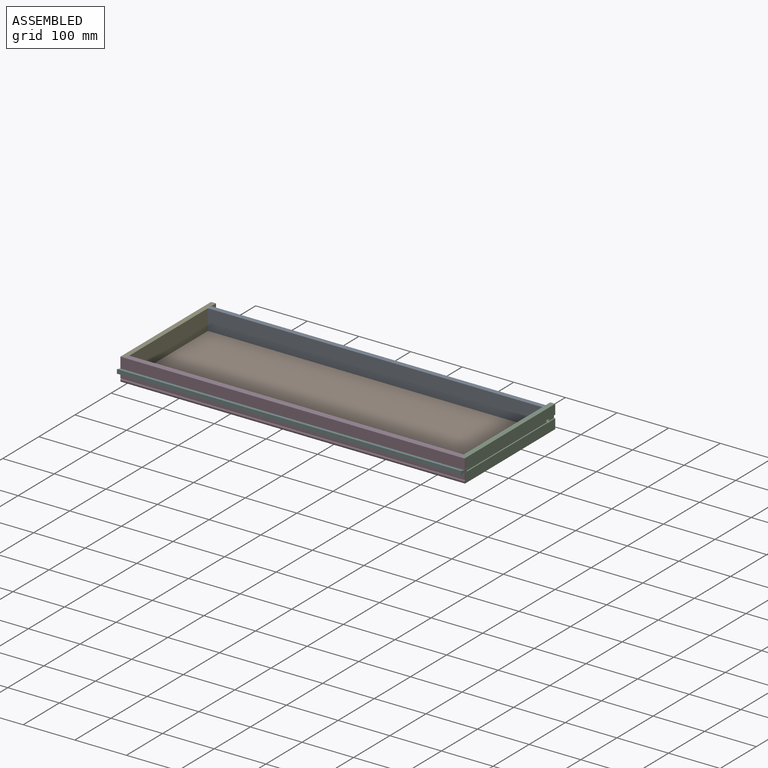
[diagram: assembled view]
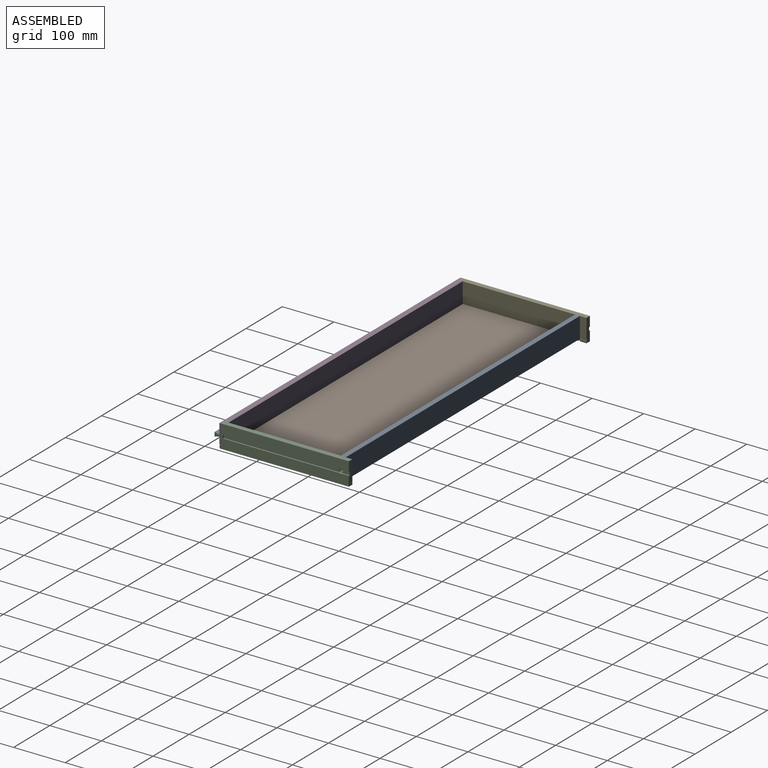
[diagram: assembled view, second angle]
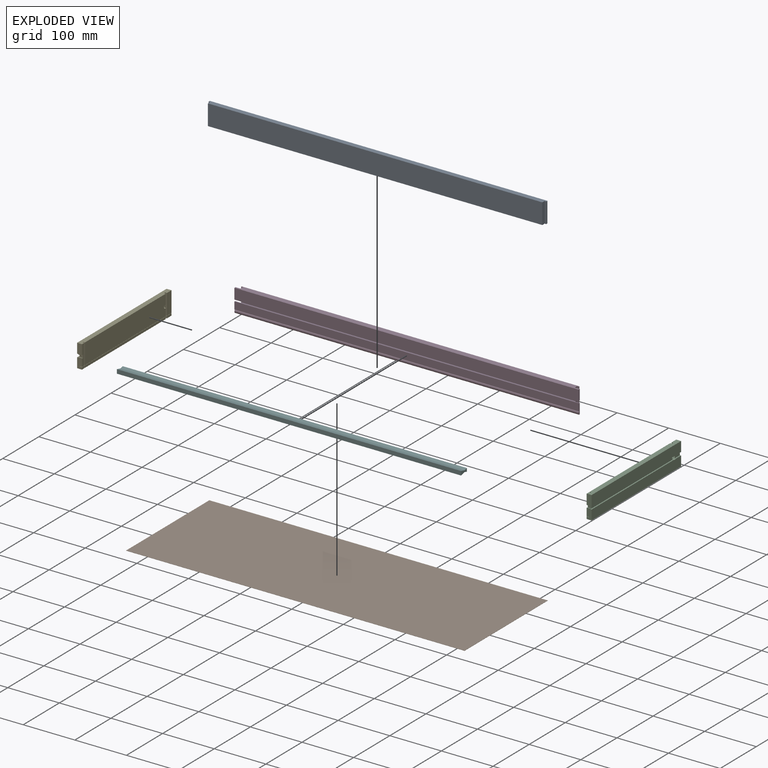
[diagram: exploded view]
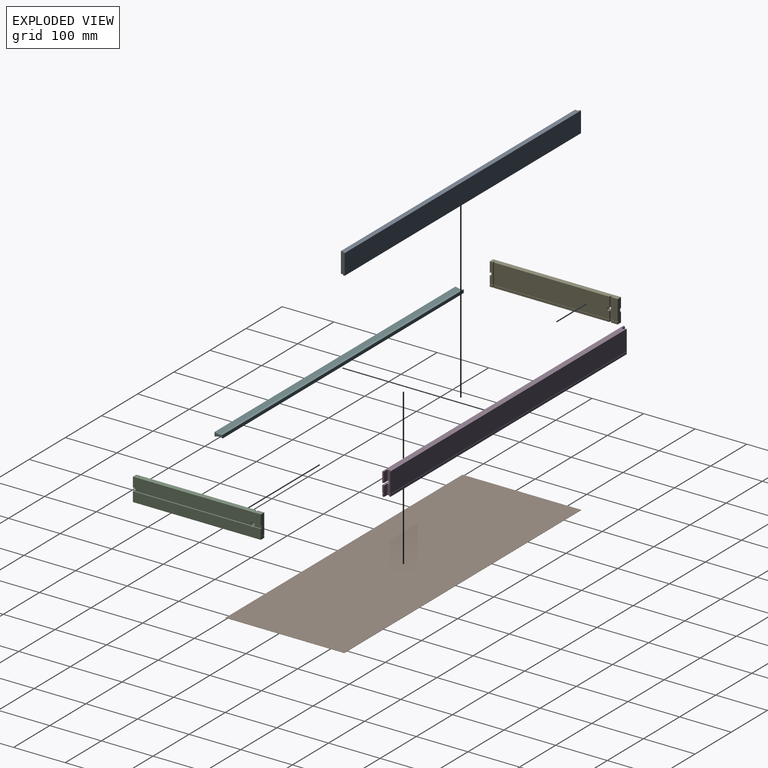
[diagram: exploded view, second angle]
ASSEMBLY  parts=6 mates=5
PART A: 10 faces, bbox 654.1x9.5x39.7 mm
  f0: plane 39.69x6.35mm, normal (1,0,0), area 252mm2, adj f1,f3,f5,f6
  f1: plane 654.05x9.53mm, normal (0,0,1), area 6189.5mm2, adj f0,f2,f4,f5,f6,f7,f8,f9
  f2: plane 39.69x6.35mm, normal (-1,0,0), area 252mm2, adj f1,f3,f5,f9
  f3: plane 654.05x9.53mm, normal (0,0,-1), area 6189.5mm2, adj f0,f2,f4,f5,f6,f7,f8,f9
  f4: plane 654.05x39.69mm, normal (0,1,0), area 25957.6mm2, adj f1,f3,f7,f8
  f5: plane 647.7x39.69mm, normal (0,-1,0), area 25705.6mm2, adj f0,f1,f2,f3
  f6: plane 39.69x3.18mm, normal (0,-1,0), area 126mm2, adj f0,f1,f3,f7
  f7: plane 39.69x3.18mm, normal (1,0,0), area 126mm2, adj f1,f3,f4,f6
  f8: plane 39.69x3.18mm, normal (-1,0,0), area 126mm2, adj f1,f3,f4,f9
  f9: plane 39.69x3.18mm, normal (0,-1,0), area 126mm2, adj f1,f2,f3,f8
PART B: 6 faces, bbox 655.7x230.2x0.4 mm
  f0: plane 230.2x0.4mm, normal (1,0,0), area 91.4mm2, adj f1,f3,f4,f5
  f1: plane 655.65x0.4mm, normal (0,1,0), area 260.2mm2, adj f0,f2,f4,f5
  f2: plane 230.2x0.4mm, normal (-1,0,0), area 91.4mm2, adj f1,f3,f4,f5
  f3: plane 655.65x0.4mm, normal (0,-1,0), area 260.2mm2, adj f0,f2,f4,f5
  f4: plane 655.65x230.2mm, normal (0,0,-1), area 150930.8mm2, adj f0,f1,f2,f3
  f5: plane 655.65x230.2mm, normal (0,0,1), area 150930.8mm2, adj f0,f1,f2,f3
PART C: 43 faces, bbox 9.5x247.7x44.5 mm
  f0: plane 19.84x9.53mm, normal (0,-1,0), area 185.2mm2, adj f3,f6,f15,f16,f17,f32,f33,f34
  f1: plane 247.65x19.05mm, normal (1,0,0), area 4715.2mm2, adj f2,f18,f20,f24,f37,f41
  f2: plane 19.84x9.53mm, normal (0,-1,0), area 187.1mm2, adj f1,f4,f15,f18,f36,f37
  f3: plane 7.14x3.18mm, normal (0,0.24,0.97), area 23.4mm2, adj f0,f5,f15,f38
  f4: plane 7.14x3.18mm, normal (0,0.24,-0.97), area 23.4mm2, adj f2,f5,f15,f36
  f5: plane 7.14x6.35mm, normal (0,-1,0), area 45.4mm2, adj f3,f4,f15,f35
  f6: plane 6.35x4.36mm, normal (-1,0,0), area 27.7mm2, adj f0,f17,f29,f32
  f7: plane 223.84x4.36mm, normal (-1,0,0), area 975.1mm2, adj f17,f25,f31,f32
  f8: plane 12.7x4.36mm, normal (-1,0,0), area 55.3mm2, adj f17,f20,f26,f32
  f9: plane 14.71x3.18mm, normal (0,1,0), area 46.7mm2, adj f11,f19,f22,f33
  f10: plane 39.69x3.18mm, normal (0,-1,0), area 126mm2, adj f11,f18,f21,f33
  f11: plane 39.69x3.18mm, normal (-1,0,0), area 119.8mm2, adj f9,f10,f18,f22,f27,f33
  f12: plane 39.69x3.18mm, normal (0,1,0), area 126mm2, adj f13,f15,f18,f33
  f13: plane 39.69x1.59mm, normal (-1,0,0), area 63mm2, adj f12,f14,f18,f33
  f14: plane 39.69x3.18mm, normal (0,-1,0), area 126mm2, adj f13,f18,f19,f33
  f15: plane 39.69x6.35mm, normal (-1,0,0), area 234.4mm2, adj f0,f2,f3,f4,f5,f12,f18,f33
  f16: plane 247.65x19.05mm, normal (1,0,0), area 4715.2mm2, adj f0,f17,f20,f24,f39,f42
  f17: plane 247.65x9.53mm, normal (0,0,-1), area 2343.7mm2, adj f0,f6,f7,f8,f16,f20,f25,f26
  f18: plane 247.65x9.53mm, normal (0,0,1), area 2343.7mm2, adj f1,f2,f10,f11,f12,f13,f14,f15
  f19: plane 223.84x39.69mm, normal (-1,0,0), area 8858.1mm2, adj f9,f14,f18,f22,f27,f33
  f20: plane 44.45x9.53mm, normal (0,1,0), area 406.3mm2, adj f1,f8,f16,f17,f18,f21,f32,f33
  f21: plane 39.69x12.7mm, normal (-1,0,0), area 504mm2, adj f10,f18,f20,f33
  f22: cylinder r=3.17mm len=6.35mm, axis (1,0,0), area 73.9mm2, adj f9,f11,f19,f23,f27
  f23: plane 7.94x7.94mm, normal (1,0,0), area 17.8mm2, adj f22,f24
  f24: cylinder r=3.97mm len=7.94mm, axis (1,0,0), area 83.7mm2, adj f1,f16,f23,f35,f37,f39,f40,f41
  f25: plane 4.36x3.18mm, normal (0,1,0), area 13.8mm2, adj f7,f17,f28,f32
  f26: plane 4.36x3.18mm, normal (0,-1,0), area 13.8mm2, adj f8,f17,f28,f32
  f27: plane 19.48x3.18mm, normal (0,1,0), area 61.8mm2, adj f11,f18,f19,f22
  f28: plane 4.36x3.18mm, normal (-1,0,0), area 13.8mm2, adj f17,f25,f26,f32
  f29: plane 4.36x3.18mm, normal (0,1,0), area 13.8mm2, adj f6,f17,f30,f32
  f30: plane 4.36x1.59mm, normal (-1,0,0), area 6.9mm2, adj f17,f29,f31,f32
  f31: plane 4.36x3.18mm, normal (0,-1,0), area 13.8mm2, adj f7,f17,f30,f32
  f32: plane 247.65x4.76mm, normal (0,0,1), area 1164.3mm2, adj f0,f6,f7,f8,f20,f25,f26,f28
  f33: plane 247.65x4.76mm, normal (0,0,-1), area 1164.3mm2, adj f0,f9,f10,f11,f12,f13,f14,f15
  f34: plane 247.65x0.41mm, normal (-1,0,0), area 100.6mm2, adj f0,f20,f32,f33
  f35: plane 224.63x6.35mm, normal (1,0,0), area 1419.4mm2, adj f5,f24,f37,f39
  f36: plane 3.18x0.79mm, normal (1,0,0), area 1.3mm2, adj f2,f4,f37
  f37: plane 227.81x2.38mm, normal (0,0,-1), area 542.5mm2, adj f1,f2,f24,f35,f36
  f38: plane 3.18x0.79mm, normal (1,0,0), area 1.3mm2, adj f0,f3,f39
  f39: plane 227.81x2.38mm, normal (0,0,1), area 542.5mm2, adj f0,f16,f24,f35,f38
  f40: plane 15.08x6.35mm, normal (1,0,0), area 88.7mm2, adj f20,f24,f41,f42
  f41: plane 15.08x2.38mm, normal (0,0,-1), area 35.9mm2, adj f1,f20,f24,f40
  f42: plane 15.08x2.38mm, normal (0,0,1), area 35.9mm2, adj f16,f20,f24,f40
PART D: 32 faces, bbox 666.8x11.1x44.5 mm
  f0: plane 20.63x3.18mm, normal (-1,0,0), area 60.8mm2, adj f1,f6,f15,f23,f30,f31
  f1: plane 666.75x9.53mm, normal (0,0,-1), area 6209.7mm2, adj f0,f3,f4,f16,f18,f20,f22,f23
  f2: plane 654.05x39.69mm, normal (0,1,0), area 25957.6mm2, adj f5,f10,f19,f28
  f3: plane 654.05x4.36mm, normal (0,1,0), area 2849.1mm2, adj f1,f9,f18,f27
  f4: plane 20.63x3.18mm, normal (1,0,0), area 60.8mm2, adj f1,f6,f15,f16,f30,f31
  f5: plane 666.75x11.11mm, normal (0,0,1), area 7268.1mm2, adj f2,f12,f13,f14,f17,f19,f21,f22
  f6: plane 666.75x6.35mm, normal (0,0.24,0.97), area 4301.1mm2, adj f0,f4,f7,f15,f16,f22,f23,f29
  f7: plane 647.7x6.35mm, normal (0,-1,0), area 4112.9mm2, adj f6,f8,f22,f29
  f8: plane 666.75x6.35mm, normal (0,0.24,-0.97), area 4301.1mm2, adj f7,f12,f13,f14,f17,f22,f24,f29
  f9: plane 654.05x4.76mm, normal (0,0,1), area 3094.8mm2, adj f3,f11,f18,f20,f22,f25,f27,f29
  f10: plane 654.05x4.76mm, normal (0,0,-1), area 3094.8mm2, adj f2,f11,f19,f21,f22,f26,f28,f29
  f11: plane 647.7x0.41mm, normal (0,1,0), area 263.2mm2, adj f9,f10,f22,f29
  f12: plane 20.63x3.18mm, normal (-1,0,0), area 64.3mm2, adj f5,f8,f13,f24
  f13: plane 666.75x20.63mm, normal (0,-1,0), area 13757.2mm2, adj f5,f8,f12,f14
  f14: plane 20.63x3.18mm, normal (1,0,0), area 64.3mm2, adj f5,f8,f13,f17
  f15: plane 666.75x14.07mm, normal (0,-1,0), area 9381.4mm2, adj f0,f4,f6,f31
  f16: plane 19.84x9.53mm, normal (0,1,0), area 189mm2, adj f1,f4,f6,f22
  f17: plane 19.84x9.53mm, normal (0,1,0), area 189mm2, adj f5,f8,f14,f22
  f18: plane 4.36x1.59mm, normal (1,0,0), area 6.9mm2, adj f1,f3,f9,f20
  f19: plane 39.69x1.59mm, normal (1,0,0), area 63mm2, adj f2,f5,f10,f21
  f20: plane 4.36x3.18mm, normal (0,-1,0), area 13.8mm2, adj f1,f9,f18,f22
  f21: plane 39.69x3.18mm, normal (0,-1,0), area 126mm2, adj f5,f10,f19,f22
  f22: plane 44.45x6.35mm, normal (1,0,0), area 263.3mm2, adj f1,f5,f6,f7,f8,f9,f10,f11
  f23: plane 19.84x9.53mm, normal (0,1,0), area 189mm2, adj f0,f1,f6,f29
  f24: plane 19.84x9.53mm, normal (0,1,0), area 189mm2, adj f5,f8,f12,f29
  f25: plane 4.36x3.18mm, normal (0,-1,0), area 13.8mm2, adj f1,f9,f27,f29
  f26: plane 39.69x3.18mm, normal (0,-1,0), area 126mm2, adj f5,f10,f28,f29
  f27: plane 4.36x1.59mm, normal (-1,0,0), area 6.9mm2, adj f1,f3,f9,f25
  f28: plane 39.69x1.59mm, normal (-1,0,0), area 63mm2, adj f2,f5,f10,f26
  f29: plane 44.45x6.35mm, normal (-1,0,0), area 263.3mm2, adj f1,f5,f6,f7,f8,f9,f10,f11
  f30: cylinder r=3.97mm len=666.75mm, axis (1,0,0), area 5160.6mm2, adj f0,f1,f4,f31
  f31: plane 666.75x1.9mm, normal (0,0,-1), area 1267.9mm2, adj f0,f4,f15,f30
PART E: 43 faces, bbox 9.5x247.7x44.5 mm
  f0: plane 19.84x9.53mm, normal (0,-1,0), area 185.2mm2, adj f3,f6,f15,f16,f17,f32,f33,f34
  f1: plane 247.65x19.05mm, normal (-1,0,0), area 4715.2mm2, adj f2,f18,f20,f24,f37,f41
  f2: plane 19.84x9.53mm, normal (0,-1,0), area 187.1mm2, adj f1,f4,f15,f18,f36,f37
  f3: plane 7.14x3.18mm, normal (0,0.24,0.97), area 23.4mm2, adj f0,f5,f15,f38
  f4: plane 7.14x3.18mm, normal (0,0.24,-0.97), area 23.4mm2, adj f2,f5,f15,f36
  f5: plane 7.14x6.35mm, normal (0,-1,0), area 45.4mm2, adj f3,f4,f15,f35
  f6: plane 6.35x4.36mm, normal (1,0,0), area 27.7mm2, adj f0,f17,f29,f32
  f7: plane 223.84x4.36mm, normal (1,0,0), area 975.1mm2, adj f17,f25,f31,f32
  f8: plane 12.7x4.36mm, normal (1,0,0), area 55.3mm2, adj f17,f20,f26,f32
  f9: plane 14.71x3.18mm, normal (0,1,0), area 46.7mm2, adj f11,f19,f22,f33
  f10: plane 39.69x3.18mm, normal (0,-1,0), area 126mm2, adj f11,f18,f21,f33
  f11: plane 39.69x3.18mm, normal (1,0,0), area 119.8mm2, adj f9,f10,f18,f22,f27,f33
  f12: plane 39.69x3.18mm, normal (0,1,0), area 126mm2, adj f13,f15,f18,f33
  f13: plane 39.69x1.59mm, normal (1,0,0), area 63mm2, adj f12,f14,f18,f33
  f14: plane 39.69x3.18mm, normal (0,-1,0), area 126mm2, adj f13,f18,f19,f33
  f15: plane 39.69x6.35mm, normal (1,0,0), area 234.4mm2, adj f0,f2,f3,f4,f5,f12,f18,f33
  f16: plane 247.65x19.05mm, normal (-1,0,0), area 4715.2mm2, adj f0,f17,f20,f24,f39,f42
  f17: plane 247.65x9.53mm, normal (0,0,-1), area 2343.7mm2, adj f0,f6,f7,f8,f16,f20,f25,f26
  f18: plane 247.65x9.53mm, normal (0,0,1), area 2343.7mm2, adj f1,f2,f10,f11,f12,f13,f14,f15
  f19: plane 223.84x39.69mm, normal (1,0,0), area 8858.1mm2, adj f9,f14,f18,f22,f27,f33
  f20: plane 44.45x9.53mm, normal (0,1,0), area 406.3mm2, adj f1,f8,f16,f17,f18,f21,f32,f33
  f21: plane 39.69x12.7mm, normal (1,0,0), area 504mm2, adj f10,f18,f20,f33
  f22: cylinder r=3.17mm len=6.35mm, axis (-1,0,0), area 73.9mm2, adj f9,f11,f19,f23,f27
  f23: plane 7.94x7.94mm, normal (-1,0,0), area 17.8mm2, adj f22,f24
  f24: cylinder r=3.97mm len=7.94mm, axis (-1,0,0), area 83.7mm2, adj f1,f16,f23,f35,f37,f39,f40,f41
  f25: plane 4.36x3.18mm, normal (0,1,0), area 13.8mm2, adj f7,f17,f28,f32
  f26: plane 4.36x3.18mm, normal (0,-1,0), area 13.8mm2, adj f8,f17,f28,f32
  f27: plane 19.48x3.18mm, normal (0,1,0), area 61.8mm2, adj f11,f18,f19,f22
  f28: plane 4.36x3.18mm, normal (1,0,0), area 13.8mm2, adj f17,f25,f26,f32
  f29: plane 4.36x3.18mm, normal (0,1,0), area 13.8mm2, adj f6,f17,f30,f32
  f30: plane 4.36x1.59mm, normal (1,0,0), area 6.9mm2, adj f17,f29,f31,f32
  f31: plane 4.36x3.18mm, normal (0,-1,0), area 13.8mm2, adj f7,f17,f30,f32
  f32: plane 247.65x4.76mm, normal (0,0,1), area 1164.3mm2, adj f0,f6,f7,f8,f20,f25,f26,f28
  f33: plane 247.65x4.76mm, normal (0,0,-1), area 1164.3mm2, adj f0,f9,f10,f11,f12,f13,f14,f15
  f34: plane 247.65x0.41mm, normal (1,0,0), area 100.6mm2, adj f0,f20,f32,f33
  f35: plane 224.63x6.35mm, normal (-1,0,0), area 1419.4mm2, adj f5,f24,f37,f39
  f36: plane 3.18x0.79mm, normal (-1,0,0), area 1.3mm2, adj f2,f4,f37
  f37: plane 227.81x2.38mm, normal (0,0,-1), area 542.5mm2, adj f1,f2,f24,f35,f36
  f38: plane 3.18x0.79mm, normal (-1,0,0), area 1.3mm2, adj f0,f3,f39
  f39: plane 227.81x2.38mm, normal (0,0,1), area 542.5mm2, adj f0,f16,f24,f35,f38
  f40: plane 15.08x6.35mm, normal (-1,0,0), area 88.7mm2, adj f20,f24,f41,f42
  f41: plane 15.08x2.38mm, normal (0,0,-1), area 35.9mm2, adj f1,f20,f24,f40
  f42: plane 15.08x2.38mm, normal (0,0,1), area 35.9mm2, adj f16,f20,f24,f40
PART F: 8 faces, bbox 666.8x15.9x7.9 mm
  f0: plane 666.75x6.35mm, normal (0,1,0), area 4233.9mm2, adj f1,f5,f6,f7
  f1: plane 666.75x6.35mm, normal (0,-0.24,0.97), area 4363.5mm2, adj f0,f2,f6,f7
  f2: plane 666.75x9.53mm, normal (0,0.24,0.97), area 6545.2mm2, adj f1,f3,f6,f7
  f3: plane 666.75x7.93mm, normal (0,-1,0), area 5289.5mm2, adj f2,f4,f6,f7
  f4: plane 666.75x9.53mm, normal (0,0.24,-0.97), area 6545.2mm2, adj f3,f5,f6,f7
  f5: plane 666.75x6.35mm, normal (0,-0.24,-0.97), area 4363.5mm2, adj f0,f4,f6,f7
  f6: plane 15.88x7.93mm, normal (1,0,0), area 83.2mm2, adj f0,f1,f2,f3,f4,f5
  f7: plane 15.88x7.93mm, normal (-1,0,0), area 83.2mm2, adj f0,f1,f2,f3,f4,f5
PLACE A t=(0.05,-174.15,5.03)mm
PLACE B t=(0.05,25.08,61.39)mm
PLACE C t=(333.43,-94.77,-19.58)mm
PLACE D t=(0.05,-97.95,2.65)mm
PLACE E t=(-180.92,-94.77,-19.58)mm
PLACE F t=(0.05,-97.95,2.65)mm
MATE fastened B.f5 <-> A.f3  axis (0,0,1) through (0.05,140.18,-14.81)mm
MATE fastened F.f0 <-> D.f7  axis (0,1,0) through (0.05,-91.6,2.65)mm
MATE fastened A.f1 <-> E.f18  axis (0,0,1) through (-323.8,137,24.87)mm
MATE fastened C.f18 <-> D.f5  axis (0,0,1) through (323.9,-91.6,24.87)mm
MATE fastened E.f18 <-> D.f5  axis (0,0,1) through (-323.8,-91.6,24.87)mm
